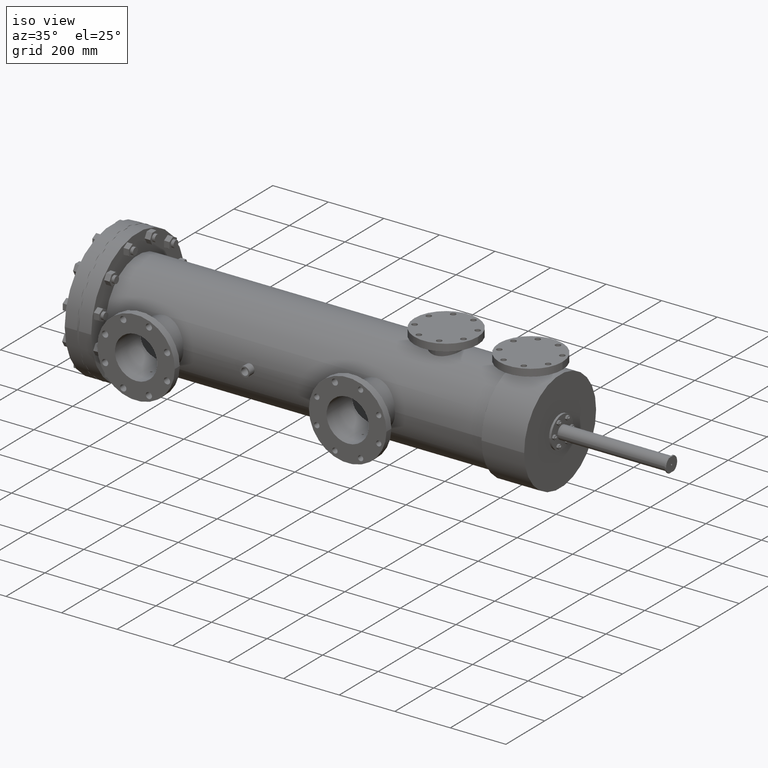
[diagram: clean part render]
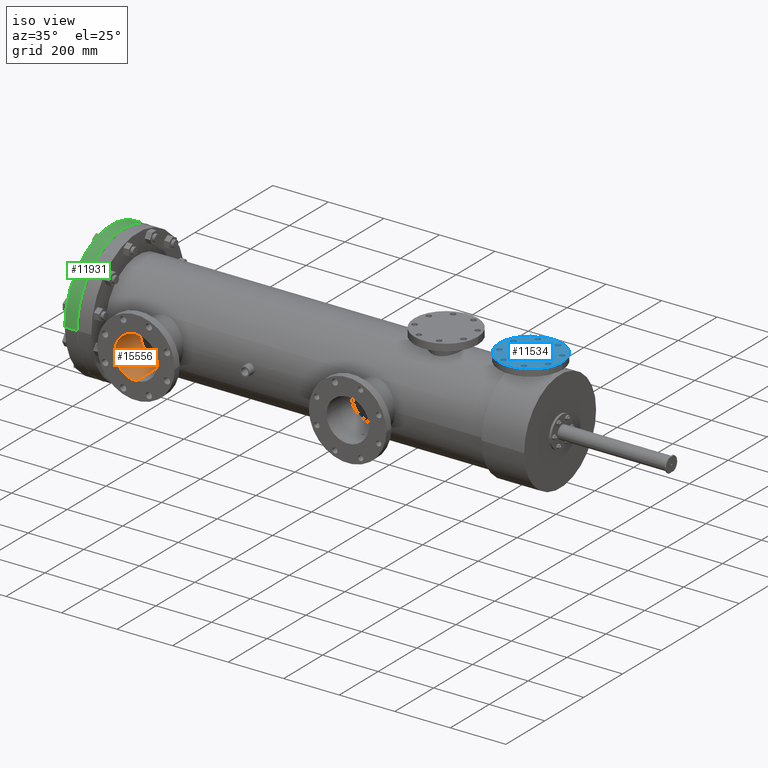
[diagram: same view with three faces highlighted in distinct colors, each labeled with its STEP entity id]
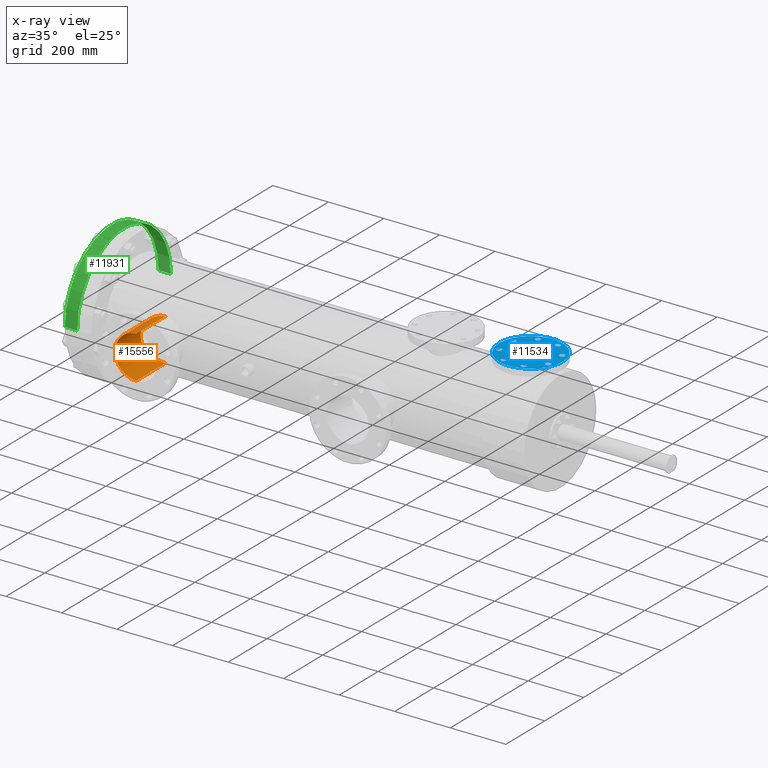
[diagram: x-ray of the same camera — body ghosted, the three highlighted faces saturated]
A machine part, iso view with three faces highlighted in distinct colors.
The next image is the same camera in x-ray (body ghosted, the three faces saturated) — at least one of them is partly hidden behind the body in this view.
Their STEP definitions:

[orange] entity #15556 — the highlighted cylindrical surface (edge-blend (fillet) strip) has radius 76.2 mm, axis along (-0, 1, -0).
#492 = VERTEX_POINT ( 'NONE', #22740 ) ;
#597 = CARTESIAN_POINT ( 'NONE',  ( 11.51730782642430562, -8.652575197445298016, 2.998526264328826851 ) ) ;
#623 = CARTESIAN_POINT ( 'NONE',  ( 9.558674139536940118, -6.039078318696860848, 2.189789538156999171 ) ) ;
#641 = CARTESIAN_POINT ( 'NONE',  ( 11.57859284369240882, -8.448309523612371308, 2.999857366286371452 ) ) ;
#702 = CARTESIAN_POINT ( 'NONE',  ( 10.92273503062959250, -5.721399554586327874, 2.920283405058814008 ) ) ;
#719 = CARTESIAN_POINT ( 'NONE',  ( 11.49911367317697675, -8.514700157483538590, 2.997895352627950150 ) ) ;
#781 = CARTESIAN_POINT ( 'NONE',  ( 11.49914880006620876, -8.625378343059585617, -2.997896691123318913 ) ) ;
#851 = CARTESIAN_POINT ( 'NONE',  ( 8.612778243953142621, -6.422659972131992134, -0.1006790159273870111 ) ) ;
#918 = CARTESIAN_POINT ( 'NONE',  ( 9.019205720796676928, -6.243195325996832246, -1.513113175104182195 ) ) ;
#983 = CARTESIAN_POINT ( 'NONE',  ( 9.459524635191909780, -6.073732202540636393, -2.090767382326028656 ) ) ;
#990 = CARTESIAN_POINT ( 'NONE',  ( 11.61151093272998125, 0.0000000000000000000, 3.000000000000001776 ) ) ;
#1151 = CARTESIAN_POINT ( 'NONE',  ( 8.773676827528797517, -6.349147511311646674, 0.9742431544829021073 ) ) ;
#1344 = VERTEX_POINT ( 'NONE', #19972 ) ;
#2038 = CARTESIAN_POINT ( 'NONE',  ( 11.48732609262924420, -8.586429699091944201, -2.997429012491930944 ) ) ;
#2109 = CARTESIAN_POINT ( 'NONE',  ( 11.48651093272998125, -8.578151181965772309, -2.997394702070452777 ) ) ;
#2341 = CARTESIAN_POINT ( 'NONE',  ( 11.48651093272997947, -8.570000000000000284, -2.997394702070451444 ) ) ;
#2361 = CARTESIAN_POINT ( 'NONE',  ( 11.61151093272998125, -11.62999999999999723, 2.999999999999998224 ) ) ;
#2413 = CARTESIAN_POINT ( 'NONE',  ( 11.55605729002469850, -8.457674129808653518, -2.999497000279083725 ) ) ;
#2488 = CARTESIAN_POINT ( 'NONE',  ( 11.48651093272998125, -8.561845306880254469, -2.997394702070451444 ) ) ;
#2492 = CARTESIAN_POINT ( 'NONE',  ( 11.06615705803287497, -5.705913649854822189, -2.950430928397056451 ) ) ;
#2544 = DIRECTION ( 'NONE',  ( -0.0000000000000000000, 1.000000000000000000, -0.0000000000000000000 ) ) ;
#2573 = CARTESIAN_POINT ( 'NONE',  ( 9.562609990157868722, -6.037737463396108950, -2.193494475645485497 ) ) ;
#2643 = CARTESIAN_POINT ( 'NONE',  ( 11.61151093272998125, -5.680010873165825203, 3.000000000000001776 ) ) ;
#2648 = CARTESIAN_POINT ( 'NONE',  ( 8.949445286971972280, -6.272575007800350377, -1.384122807339581485 ) ) ;
#2657 = CARTESIAN_POINT ( 'NONE',  ( 8.825288877813729727, -6.326252989736930843, 1.113271778841407045 ) ) ;
#2674 = CARTESIAN_POINT ( 'NONE',  ( 11.59520618766432953, -8.445000000000002061, 3.000000000000002220 ) ) ;
#2691 = VECTOR ( 'NONE', #3268, 39.37007874015748143 ) ;
#2720 = CARTESIAN_POINT ( 'NONE',  ( 9.069565676925883224, -6.222408617297126021, -1.596213750561851219 ) ) ;
#2731 = LINE ( 'NONE', #990, #16394 ) ;
#3106 = ORIENTED_EDGE ( 'NONE', *, *, #13679, .F. ) ;
#3268 = DIRECTION ( 'NONE',  ( -0.0000000000000000000, 1.000000000000000000, -0.0000000000000000000 ) ) ;
#3417 = CARTESIAN_POINT ( 'NONE',  ( 11.61151093272998125, 0.0000000000000000000, 3.000000000000001776 ) ) ;
#3897 = CARTESIAN_POINT ( 'NONE',  ( 11.49288622820519734, -8.610251574046037248, -2.997655416985298249 ) ) ;
#4108 = ORIENTED_EDGE ( 'NONE', *, *, #6341, .F. ) ;
#4115 = CARTESIAN_POINT ( 'NONE',  ( 11.60325293728961427, -8.445000000000000284, -3.000000000000002220 ) ) ;
#4124 = EDGE_CURVE ( 'NONE', #13887, #11366, #9494, .T. ) ;
#4135 = CARTESIAN_POINT ( 'NONE',  ( 10.10366163664201800, -5.876508609973899233, 2.593988243054515141 ) ) ;
#4201 = CARTESIAN_POINT ( 'NONE',  ( 11.49913300069727917, -8.514659997089875532, -2.997896082015063524 ) ) ;
#4229 = CARTESIAN_POINT ( 'NONE',  ( 11.49289277310040802, -8.529738992269631837, 2.997655654252064927 ) ) ;
#4269 = EDGE_CURVE ( 'NONE', #12900, #492, #8682, .T. ) ;
#4275 = CARTESIAN_POINT ( 'NONE',  ( 11.48651093272997947, -8.570000000000000284, -2.997394702070451444 ) ) ;
#4280 = CARTESIAN_POINT ( 'NONE',  ( 11.51242153053748041, -5.680010873165824314, -3.000000000000001332 ) ) ;
#4336 = CARTESIAN_POINT ( 'NONE',  ( 11.49288278390646667, -8.610245222267742804, 2.997655288889556235 ) ) ;
#4418 = CARTESIAN_POINT ( 'NONE',  ( 11.57125766154246982, -8.688623815805774697, 2.999739460536007929 ) ) ;
#4439 = CARTESIAN_POINT ( 'NONE',  ( 11.61151093272998125, -5.680010873165825203, -3.000000000000001776 ) ) ;
#4519 = CARTESIAN_POINT ( 'NONE',  ( 11.57126417256643691, -8.688627245798917542, -2.999739588468133267 ) ) ;
#4587 = CARTESIAN_POINT ( 'NONE',  ( 8.864251821746279347, -6.309197418604619578, -1.206233523104106364 ) ) ;
#4598 = CARTESIAN_POINT ( 'NONE',  ( 8.714118215928365885, -6.375943033931925186, 0.7842245057926716667 ) ) ;
#4713 = EDGE_CURVE ( 'NONE', #15642, #7315, #19085, .T. ) ;
#5114 = VERTEX_POINT ( 'NONE', #2361 ) ;
#5137 = CARTESIAN_POINT ( 'NONE',  ( 11.48651093272997947, -8.570000000000000284, 2.997394702070451888 ) ) ;
#5164 = CARTESIAN_POINT ( 'NONE',  ( 11.61151093272998125, 0.0000000000000000000, -3.000000000000001776 ) ) ;
#5438 = ORIENTED_EDGE ( 'NONE', *, *, #4124, .T. ) ;
#5569 = B_SPLINE_CURVE_WITH_KNOTS ( 'NONE', 3,
 ( #20277, #18426, #20135, #15005, #4418, #16828, #16587, #11280, #20444, #597, #18651, #7752, #5978, #4336, #16666, #11362, #9624, #22048 ),
 .UNSPECIFIED., .F., .F.,
 ( 4, 2, 2, 2, 2, 2, 2, 2, 4 ),
 ( 0.01026871614363562488, 0.01088905331869215870, 0.01150939049374869079, 0.01212972766880522461, 0.01275006484386175670, 0.01337040201891829053, 0.01399073919397482435, 0.01461107636903135817, 0.01523141354408789026 ),
 .UNSPECIFIED. ) ;
#5857 = CARTESIAN_POINT ( 'NONE',  ( 11.41101971926195979, -5.680010873165826091, 3.000000000000003109 ) ) ;
#5862 = CIRCLE ( 'NONE', #10094, 2.999999999999997335 ) ;
#5918 = CARTESIAN_POINT ( 'NONE',  ( 11.54887625798807349, -8.461516642900624774, -2.999353776064950239 ) ) ;
#5935 = CARTESIAN_POINT ( 'NONE',  ( 9.779210337748992288, -5.967676546009285765, 2.377394826914358550 ) ) ;
#5978 = CARTESIAN_POINT ( 'NONE',  ( 11.49916102432977816, -8.625405899425414802, 2.997897157472764640 ) ) ;
#6078 = CARTESIAN_POINT ( 'NONE',  ( 11.53527644826181842, -8.669396075706876204, -2.999038868677315506 ) ) ;
#6085 = CARTESIAN_POINT ( 'NONE',  ( 10.36274620202200758, -5.814922213508030069, 2.729499152386317906 ) ) ;
#6157 = CARTESIAN_POINT ( 'NONE',  ( 8.710923988507321525, -6.377351709289070136, -0.7910484460025092313 ) ) ;
#6161 = CARTESIAN_POINT ( 'NONE',  ( 11.51211861491758981, -8.646239738078200787, -2.998356496248436809 ) ) ;
#6165 = CARTESIAN_POINT ( 'NONE',  ( 9.175622817630864958, -6.180001919292234192, 1.751806825134517132 ) ) ;
#6182 = CARTESIAN_POINT ( 'NONE',  ( 11.51210720452737668, -8.493765299116203593, 2.998356186808221580 ) ) ;
#6232 = CARTESIAN_POINT ( 'NONE',  ( 8.617844152002581026, -6.420297347325010229, -0.2012292447834091724 ) ) ;
#6236 = CARTESIAN_POINT ( 'NONE',  ( 11.57905623031146369, -8.690989001637477784, -2.999835127671413026 ) ) ;
#6288 = B_SPLINE_CURVE_WITH_KNOTS ( 'NONE', 3,
 ( #18284, #5857, #20162, #20237, #702, #9336, #13172, #14807, #21844, #6085, #21923, #11154, #4135, #18600, #16616, #18458, #5935, #9491, #623, #7857, #13090, #20401, #9658, #6165, #15252, #16935, #13319, #2657, #15111, #1151, #22539, #4598, #6320, #13398, #8082, #15330 ),
 .UNSPECIFIED., .F., .F.,
 ( 4, 2, 2, 2, 2, 2, 2, 2, 2, 2, 2, 2, 2, 2, 2, 2, 2, 4 ),
 ( 0.3544623844793388656, 0.3695564702495036102, 0.3733299916920448380, 0.3771035131345861213, 0.3846505560196687989, 0.3921975989047514211, 0.3959711203472928709, 0.3997446417898342652, 0.4072916846749171094, 0.4148387275599999535, 0.4223857704450827422, 0.4261592918876241920, 0.4299328133301656418, 0.4450268991003314412, 0.4488004205428729465, 0.4525739419854144518, 0.4601209848704974070, 0.4752150706406633729 ),
 .UNSPECIFIED. ) ;
#6307 = CARTESIAN_POINT ( 'NONE',  ( 9.328365756885535376, -6.121427064491269832, -1.946689782794536638 ) ) ;
#6320 = CARTESIAN_POINT ( 'NONE',  ( 8.689858404075319953, -6.387028403257645870, 0.6882594674136749413 ) ) ;
#6341 = EDGE_CURVE ( 'NONE', #18507, #19734, #6288, .T. ) ;
#6385 = CARTESIAN_POINT ( 'NONE',  ( 9.425817164388897496, -6.085759376637758677, -2.055509284822179872 ) ) ;
#6730 = AXIS2_PLACEMENT_3D ( 'NONE', #10597, #14024, #23086 ) ;
#6825 = ORIENTED_EDGE ( 'NONE', *, *, #15768, .F. ) ;
#7001 = CARTESIAN_POINT ( 'NONE',  ( 11.61151093272998125, -8.445000000000000284, -3.000000000000001776 ) ) ;
#7273 = CARTESIAN_POINT ( 'NONE',  ( 11.61151093272998125, -8.695000000000000284, 3.000000000000001776 ) ) ;
#7315 = VERTEX_POINT ( 'NONE', #16777 ) ;
#7400 = LINE ( 'NONE', #3417, #2691 ) ;
#7500 = B_SPLINE_CURVE_WITH_KNOTS ( 'NONE', 3,
 ( #18449, #13233, #851, #6232, #11529, #18592, #18755, #6157, #18902, #4587, #7849, #7991, #2648, #918, #2720, #17084, #9718, #6307, #8154, #6385, #983, #2573, #20532, #13388, #7923, #18827, #13464, #22446, #11679, #20462, #11755, #9873, #15241, #13163, #15173, #2492, #15028, #8071, #22218, #14946, #13307, #11457, #4280, #4439 ),
 .UNSPECIFIED., .F., .F.,
 ( 4, 2, 2, 2, 2, 2, 2, 2, 2, 2, 2, 2, 2, 2, 2, 2, 2, 2, 2, 2, 2, 4 ),
 ( 0.4752150706406633729, 0.4789906789865779890, 0.4827662873324926052, 0.4903175040243217819, 0.5054199374079803020, 0.5091955457538948071, 0.5129711540998094232, 0.5205223707916386555, 0.5280735874834677768, 0.5318491958293823929, 0.5356248041752970090, 0.5431760208671262413, 0.5507272375589554736, 0.5582784542507848169, 0.5620540625966994330, 0.5658296709426140492, 0.5733808876344435035, 0.5809321043262728468, 0.5847077126721875739, 0.5865955168451449930, 0.5884833210181024121, 0.5960345377099320885 ),
 .UNSPECIFIED. ) ;
#7690 = CARTESIAN_POINT ( 'NONE',  ( 11.53528924306585779, -8.470591774624423920, -2.999039251243612370 ) ) ;
#7735 = ORIENTED_EDGE ( 'NONE', *, *, #14653, .F. ) ;
#7752 = CARTESIAN_POINT ( 'NONE',  ( 11.50306624932985144, -8.632697806341726121, 2.998042734768266993 ) ) ;
#7849 = CARTESIAN_POINT ( 'NONE',  ( 8.884556531577100458, -6.300380617423853913, -1.251459570571708646 ) ) ;
#7852 = CARTESIAN_POINT ( 'NONE',  ( 11.50306614039963549, -8.632698146055373556, -2.998042734593981518 ) ) ;
#7857 = CARTESIAN_POINT ( 'NONE',  ( 9.422152512063773244, -6.086816769151702111, 2.053296575452967065 ) ) ;
#7919 = CARTESIAN_POINT ( 'NONE',  ( 11.57120279243592087, -8.451393670364675259, -2.999738757791842403 ) ) ;
#7923 = CARTESIAN_POINT ( 'NONE',  ( 9.860564915369748107, -5.943134709823252315, -2.437938798087624370 ) ) ;
#7946 = CARTESIAN_POINT ( 'NONE',  ( 11.48651093272997770, -8.561842672739363280, 2.997394702070451444 ) ) ;
#7991 = CARTESIAN_POINT ( 'NONE',  ( 8.927157092783252423, -6.282068015163912555, -1.340401367018791978 ) ) ;
#8041 = CARTESIAN_POINT ( 'NONE',  ( 11.61151093272998125, 0.0000000000000000000, -3.000000000000001776 ) ) ;
#8071 = CARTESIAN_POINT ( 'NONE',  ( 11.18940637292363327, -5.695611970100188159, -2.970261599930613006 ) ) ;
#8082 = CARTESIAN_POINT ( 'NONE',  ( 8.611510932729977696, -6.423251896665703065, 0.2006998500313843803 ) ) ;
#8154 = CARTESIAN_POINT ( 'NONE',  ( 9.360196879233747325, -6.109622326236680223, -1.983421463402464946 ) ) ;
#8498 = EDGE_LOOP ( 'NONE', ( #22707, #5438, #3106, #6825, #15513, #13924, #4108, #8658, #16543, #14529, #7735 ) ) ;
#8658 = ORIENTED_EDGE ( 'NONE', *, *, #13739, .F. ) ;
#8682 = B_SPLINE_CURVE_WITH_KNOTS ( 'NONE', 3,
 ( #9674, #7946, #20631, #13186, #4229, #719, #16871, #6182, #9588, #13417, #16719, #11481, #20412, #641, #2674, #18702 ),
 .UNSPECIFIED., .F., .F.,
 ( 4, 2, 2, 2, 2, 2, 2, 4 ),
 ( 0.01523141354408789026, 0.01585146404183380639, 0.01647151453957972078, 0.01709156503732563517, 0.01771161553507154957, 0.01833166603281746743, 0.01895171653056338182, 0.02019181752605521060 ),
 .UNSPECIFIED. ) ;
#8978 = B_SPLINE_CURVE_WITH_KNOTS ( 'NONE', 3,
 ( #2341, #2109, #2038, #14503, #3897, #781, #7852, #6161, #20467, #11605, #6078, #11532, #13392, #4519, #6236, #9650, #20234, #15033 ),
 .UNSPECIFIED., .F., .F.,
 ( 4, 2, 2, 2, 2, 2, 2, 2, 4 ),
 ( 0.01028573131980138611, 0.01090606609851138206, 0.01152640087722137628, 0.01214673565593137050, 0.01276707043464136646, 0.01338740521335136241, 0.01400773999206135663, 0.01462807477077135085, 0.01524840954948134680 ),
 .UNSPECIFIED. ) ;
#9284 = B_SPLINE_CURVE_WITH_KNOTS ( 'NONE', 3,
 ( #12992, #4115, #18670, #18514, #7919, #2413, #5918, #7690, #9638, #9479, #11448, #14865, #4201, #16683, #20297, #9559, #2488, #4275 ),
 .UNSPECIFIED., .F., .F.,
 ( 4, 2, 2, 2, 2, 2, 2, 2, 4 ),
 ( 0.005320915396783404590, 0.005941517387160651954, 0.006562119377537900186, 0.007182721367915147551, 0.007803323358292394915, 0.008423925348669644014, 0.009044527339046891379, 0.009665129329424138743, 0.01028573131980138611 ),
 .UNSPECIFIED. ) ;
#9336 = CARTESIAN_POINT ( 'NONE',  ( 10.82643289495596584, -5.733783700219906798, 2.895879811694713091 ) ) ;
#9479 = CARTESIAN_POINT ( 'NONE',  ( 11.51732355690012888, -8.487415025697931270, -2.998526640205414928 ) ) ;
#9491 = CARTESIAN_POINT ( 'NONE',  ( 9.630059790156490607, -6.015123296796152097, 2.254591537951178726 ) ) ;
#9494 = LINE ( 'NONE', #5164, #13138 ) ;
#9559 = CARTESIAN_POINT ( 'NONE',  ( 11.48730119510276992, -8.553730636367118834, -2.997427983259710160 ) ) ;
#9588 = CARTESIAN_POINT ( 'NONE',  ( 11.51727864227447284, -8.487467789414520070, 2.998525200788498601 ) ) ;
#9624 = CARTESIAN_POINT ( 'NONE',  ( 11.48651093272997947, -8.578161098760944014, 2.997394702070451444 ) ) ;
#9638 = CARTESIAN_POINT ( 'NONE',  ( 11.52885523190130890, -8.475874685303534051, -2.998866670745434782 ) ) ;
#9650 = CARTESIAN_POINT ( 'NONE',  ( 11.59506830864616944, -8.694182471949734037, -2.999965623308653129 ) ) ;
#9658 = CARTESIAN_POINT ( 'NONE',  ( 9.233846376980441306, -6.157296054838731436, 1.830051726646363619 ) ) ;
#9674 = CARTESIAN_POINT ( 'NONE',  ( 11.48651093272997947, -8.570000000000000284, 2.997394702070451888 ) ) ;
#9718 = CARTESIAN_POINT ( 'NONE',  ( 9.235751127090447099, -6.156354011731264286, -1.834441976073722724 ) ) ;
#9873 = CARTESIAN_POINT ( 'NONE',  ( 10.54638919407062758, -5.778290073957357720, -2.806251295899748310 ) ) ;
#10063 = CARTESIAN_POINT ( 'NONE',  ( 11.61151093272998125, -8.695000000000000284, -3.000000000000001776 ) ) ;
#10094 = AXIS2_PLACEMENT_3D ( 'NONE', #12103, #21169, #14041 ) ;
#10597 = CARTESIAN_POINT ( 'NONE',  ( 11.61151093272998125, 0.0000000000000000000, 0.0000000000000000000 ) ) ;
#11154 = CARTESIAN_POINT ( 'NONE',  ( 10.14601930652042405, -5.865779349882723537, 2.618149986574314525 ) ) ;
#11280 = CARTESIAN_POINT ( 'NONE',  ( 11.53526934740529164, -8.669391036665738071, 2.999038697203233461 ) ) ;
#11362 = CARTESIAN_POINT ( 'NONE',  ( 11.48732912438919662, -8.586446061318168788, 2.997429136841784914 ) ) ;
#11366 = VERTEX_POINT ( 'NONE', #10063 ) ;
#11448 = CARTESIAN_POINT ( 'NONE',  ( 11.51215050342235280, -8.493710708331594361, -2.998357614777013680 ) ) ;
#11457 = CARTESIAN_POINT ( 'NONE',  ( 11.41317505001402743, -5.682604224598185816, -2.995103152180383699 ) ) ;
#11481 = CARTESIAN_POINT ( 'NONE',  ( 11.54878420086817314, -8.461569269629857004, 2.999351857317165582 ) ) ;
#11529 = CARTESIAN_POINT ( 'NONE',  ( 8.621639991304363093, -6.418527932620312626, -0.2514067542115475118 ) ) ;
#11532 = CARTESIAN_POINT ( 'NONE',  ( 11.54881275281322850, -8.678444523712267156, -2.999352391883049584 ) ) ;
#11605 = CARTESIAN_POINT ( 'NONE',  ( 11.52894635096973452, -8.664213034861242946, -2.998869306431141357 ) ) ;
#11679 = CARTESIAN_POINT ( 'NONE',  ( 10.27821300707076269, -5.834161859295483588, -2.687882626902641015 ) ) ;
#11755 = CARTESIAN_POINT ( 'NONE',  ( 10.41124395531814528, -5.805211563032085742, -2.749862150437836661 ) ) ;
#11840 = VERTEX_POINT ( 'NONE', #7273 ) ;
#11912 = DIRECTION ( 'NONE',  ( -0.0000000000000000000, 1.000000000000000000, -0.0000000000000000000 ) ) ;
#12103 = CARTESIAN_POINT ( 'NONE',  ( 11.61151093272998125, -11.62999999999999723, 0.0000000000000000000 ) ) ;
#12198 = EDGE_CURVE ( 'NONE', #5114, #13887, #5862, .T. ) ;
#12432 = CARTESIAN_POINT ( 'NONE',  ( 8.611510932729979473, -6.423251896665703065, -6.998672579388744820E-20 ) ) ;
#12598 = VECTOR ( 'NONE', #2544, 39.37007874015748143 ) ;
#12900 = VERTEX_POINT ( 'NONE', #5137 ) ;
#12992 = CARTESIAN_POINT ( 'NONE',  ( 11.61151093272998125, -8.445000000000000284, -3.000000000000001776 ) ) ;
#13090 = CARTESIAN_POINT ( 'NONE',  ( 9.357016356190994699, -6.110601573633839934, 1.981606306100660797 ) ) ;
#13138 = VECTOR ( 'NONE', #15891, 39.37007874015748143 ) ;
#13163 = CARTESIAN_POINT ( 'NONE',  ( 10.82523220960057309, -5.733402304297694485, -2.896780335266876616 ) ) ;
#13172 = CARTESIAN_POINT ( 'NONE',  ( 10.77833753393881722, -5.740569978625821967, 2.882410500712538681 ) ) ;
#13186 = CARTESIAN_POINT ( 'NONE',  ( 11.49049090753924496, -8.537651674163274862, 2.997558456540483363 ) ) ;
#13233 = CARTESIAN_POINT ( 'NONE',  ( 8.611510932729977696, -6.423251896665703065, -0.05020271120361990275 ) ) ;
#13307 = CARTESIAN_POINT ( 'NONE',  ( 11.28891655777259118, -5.689105500878236299, -2.982709610430876346 ) ) ;
#13319 = CARTESIAN_POINT ( 'NONE',  ( 8.920028094555382481, -6.284776330722483983, 1.339566503640008177 ) ) ;
#13388 = CARTESIAN_POINT ( 'NONE',  ( 9.783195349847273903, -5.966455593986117023, -2.380450646376616852 ) ) ;
#13392 = CARTESIAN_POINT ( 'NONE',  ( 11.55611349722152603, -8.682353679461714435, -2.999498045417884562 ) ) ;
#13398 = CARTESIAN_POINT ( 'NONE',  ( 8.631445376788510870, -6.413876714871289408, 0.3977783968570633988 ) ) ;
#13417 = CARTESIAN_POINT ( 'NONE',  ( 11.52878090838295400, -8.475941329904376431, 2.998864593041794979 ) ) ;
#13464 = CARTESIAN_POINT ( 'NONE',  ( 10.10458529644597014, -5.875811113533663921, -2.595924034930420010 ) ) ;
#13679 = EDGE_CURVE ( 'NONE', #1344, #11366, #8978, .T. ) ;
#13739 = EDGE_CURVE ( 'NONE', #492, #18507, #2731, .T. ) ;
#13887 = VERTEX_POINT ( 'NONE', #17853 ) ;
#13924 = ORIENTED_EDGE ( 'NONE', *, *, #14468, .F. ) ;
#14024 = DIRECTION ( 'NONE',  ( -0.0000000000000000000, 1.000000000000000000, -0.0000000000000000000 ) ) ;
#14041 = DIRECTION ( 'NONE',  ( 1.000000000000000000, 0.0000000000000000000, 0.0000000000000000000 ) ) ;
#14468 = EDGE_CURVE ( 'NONE', #19734, #7315, #7500, .T. ) ;
#14503 = CARTESIAN_POINT ( 'NONE',  ( 11.49052306973512572, -8.602461462244262336, -2.997559756943491749 ) ) ;
#14529 = ORIENTED_EDGE ( 'NONE', *, *, #16010, .F. ) ;
#14653 = EDGE_CURVE ( 'NONE', #5114, #11840, #7400, .T. ) ;
#14807 = CARTESIAN_POINT ( 'NONE',  ( 10.63586089883994568, -5.762388650433971193, 2.838658105453145009 ) ) ;
#14865 = CARTESIAN_POINT ( 'NONE',  ( 11.50301684167048677, -8.507377455013084955, -2.998041012596170951 ) ) ;
#14946 = CARTESIAN_POINT ( 'NONE',  ( 11.26405482229124111, -5.690568634913056201, -2.979916532099756044 ) ) ;
#15005 = CARTESIAN_POINT ( 'NONE',  ( 11.57904739029862995, -8.690987583633308589, 2.999835069188787173 ) ) ;
#15028 = CARTESIAN_POINT ( 'NONE',  ( 11.11516999261544569, -5.701431217863623502, -2.959079349543181081 ) ) ;
#15033 = CARTESIAN_POINT ( 'NONE',  ( 11.61151093272998125, -8.695000000000000284, -3.000000000000001776 ) ) ;
#15111 = CARTESIAN_POINT ( 'NONE',  ( 8.807376407016706210, -6.334163719036722817, 1.067371394783747096 ) ) ;
#15173 = CARTESIAN_POINT ( 'NONE',  ( 10.92049926636936874, -5.721053435336241222, -2.921012996292519759 ) ) ;
#15241 = CARTESIAN_POINT ( 'NONE',  ( 10.63817701161250184, -5.762020379119558555, -2.839399869556410660 ) ) ;
#15252 = CARTESIAN_POINT ( 'NONE',  ( 9.147542417761219014, -6.191126921136294925, 1.712080063662836382 ) ) ;
#15330 = CARTESIAN_POINT ( 'NONE',  ( 8.611510932729979473, -6.423251896665703065, -6.998672579388744820E-20 ) ) ;
#15513 = ORIENTED_EDGE ( 'NONE', *, *, #4713, .T. ) ;
#15556 = ADVANCED_FACE ( 'NONE', ( #19158 ), #18870, .F. ) ;
#15642 = VERTEX_POINT ( 'NONE', #7001 ) ;
#15768 = EDGE_CURVE ( 'NONE', #15642, #1344, #9284, .T. ) ;
#15891 = DIRECTION ( 'NONE',  ( -0.0000000000000000000, 1.000000000000000000, -0.0000000000000000000 ) ) ;
#16010 = EDGE_CURVE ( 'NONE', #11840, #12900, #5569, .T. ) ;
#16394 = VECTOR ( 'NONE', #11912, 39.37007874015748143 ) ;
#16543 = ORIENTED_EDGE ( 'NONE', *, *, #4269, .F. ) ;
#16587 = CARTESIAN_POINT ( 'NONE',  ( 11.54881365245598168, -8.678445417370008741, 2.999352419723552821 ) ) ;
#16616 = CARTESIAN_POINT ( 'NONE',  ( 9.978676085843428467, -5.909806356370165048, 2.517188788119302245 ) ) ;
#16666 = CARTESIAN_POINT ( 'NONE',  ( 11.49052139627943703, -8.602451910963008430, 2.997559688143066836 ) ) ;
#16683 = CARTESIAN_POINT ( 'NONE',  ( 11.49290282696308374, -8.529708154963728362, -2.997656056891051524 ) ) ;
#16719 = CARTESIAN_POINT ( 'NONE',  ( 11.53519272310234456, -8.470665227347630832, 2.999036801668366614 ) ) ;
#16777 = CARTESIAN_POINT ( 'NONE',  ( 11.61151093272998125, -5.680010873165825203, -3.000000000000001776 ) ) ;
#16828 = CARTESIAN_POINT ( 'NONE',  ( 11.55613914044512391, -8.682365030755930135, 2.999498478338891605 ) ) ;
#16871 = CARTESIAN_POINT ( 'NONE',  ( 11.50296411588539947, -8.507466654076983659, 2.998039111270002000 ) ) ;
#16935 = CARTESIAN_POINT ( 'NONE',  ( 9.012215853476188698, -6.245455227098503315, 1.510433343564886455 ) ) ;
#17084 = CARTESIAN_POINT ( 'NONE',  ( 9.177838314267452446, -6.178988619428539941, -1.756878370045410032 ) ) ;
#17853 = CARTESIAN_POINT ( 'NONE',  ( 11.61151093272998125, -11.62999999999999723, -2.999999999999998224 ) ) ;
#18284 = CARTESIAN_POINT ( 'NONE',  ( 11.61151093272998125, -5.680010873165825203, 3.000000000000001776 ) ) ;
#18426 = CARTESIAN_POINT ( 'NONE',  ( 11.60336181424116297, -8.695000000000000284, 3.000000000000001332 ) ) ;
#18449 = CARTESIAN_POINT ( 'NONE',  ( 8.611510932729979473, -6.423251896665703065, -6.998672579388744820E-20 ) ) ;
#18458 = CARTESIAN_POINT ( 'NONE',  ( 9.856974222204799574, -5.944183359853131066, 2.435396694664268669 ) ) ;
#18507 = VERTEX_POINT ( 'NONE', #2643 ) ;
#18514 = CARTESIAN_POINT ( 'NONE',  ( 11.57914025546314640, -8.448989635591001246, -2.999835993468037199 ) ) ;
#18592 = CARTESIAN_POINT ( 'NONE',  ( 8.636815301938293388, -6.411471585046603749, -0.4016470016404701249 ) ) ;
#18600 = CARTESIAN_POINT ( 'NONE',  ( 10.02003741597387432, -5.898508530442269304, 2.543540160933567051 ) ) ;
#18651 = CARTESIAN_POINT ( 'NONE',  ( 11.51211373934678583, -8.646232947111878175, 2.998356330858973351 ) ) ;
#18670 = CARTESIAN_POINT ( 'NONE',  ( 11.59512077312629152, -8.445811708646598248, -2.999965868326045282 ) ) ;
#18702 = CARTESIAN_POINT ( 'NONE',  ( 11.61151093272998125, -8.445000000000000284, 3.000000000000001776 ) ) ;
#18755 = CARTESIAN_POINT ( 'NONE',  ( 8.651841237927856199, -6.404499482846487624, -0.5001458426292982873 ) ) ;
#18827 = CARTESIAN_POINT ( 'NONE',  ( 10.02126050014199699, -5.897813191421158230, -2.545674979368798496 ) ) ;
#18870 = CYLINDRICAL_SURFACE ( 'NONE', #6730, 3.000000000000001776 ) ;
#18902 = CARTESIAN_POINT ( 'NONE',  ( 8.768847705738687992, -6.350953769528980608, -0.9788650265489603486 ) ) ;
#19085 = LINE ( 'NONE', #8041, #12598 ) ;
#19158 = FACE_OUTER_BOUND ( 'NONE', #8498, .T. ) ;
#19734 = VERTEX_POINT ( 'NONE', #12432 ) ;
#19972 = CARTESIAN_POINT ( 'NONE',  ( 11.48651093272997947, -8.570000000000000284, -2.997394702070451444 ) ) ;
#20135 = CARTESIAN_POINT ( 'NONE',  ( 11.59508729700161922, -8.694185913734536086, 2.999965764489912701 ) ) ;
#20162 = CARTESIAN_POINT ( 'NONE',  ( 11.21377826404545353, -5.690637889958023443, 2.980106205035196076 ) ) ;
#20234 = CARTESIAN_POINT ( 'NONE',  ( 11.60335284526550481, -8.695000000000003837, -3.000000000000001776 ) ) ;
#20237 = CARTESIAN_POINT ( 'NONE',  ( 10.97108046634156686, -5.715779399087392854, 2.931262583689115520 ) ) ;
#20277 = CARTESIAN_POINT ( 'NONE',  ( 11.61151093272998125, -8.695000000000000284, 3.000000000000001776 ) ) ;
#20297 = CARTESIAN_POINT ( 'NONE',  ( 11.49050709648823521, -8.537583604006313109, -2.997559114573817407 ) ) ;
#20401 = CARTESIAN_POINT ( 'NONE',  ( 9.264068645811102343, -6.145685868791482598, 1.868660495272076005 ) ) ;
#20412 = CARTESIAN_POINT ( 'NONE',  ( 11.55595524925675477, -8.457726409199864293, 2.999495044285946044 ) ) ;
#20444 = CARTESIAN_POINT ( 'NONE',  ( 11.52896177276748801, -8.664225923504391247, 2.998869723628706296 ) ) ;
#20462 = CARTESIAN_POINT ( 'NONE',  ( 10.36661903527878081, -5.814605039498900396, -2.729952479116175557 ) ) ;
#20467 = CARTESIAN_POINT ( 'NONE',  ( 11.51728484611950520, -8.652549686256739037, -2.998525549635705723 ) ) ;
#20532 = CARTESIAN_POINT ( 'NONE',  ( 9.634217824493129356, -6.013756324828537281, -2.258228313206092519 ) ) ;
#20631 = CARTESIAN_POINT ( 'NONE',  ( 11.48730178853108619, -8.553741181501020918, 2.997428003367538452 ) ) ;
#21169 = DIRECTION ( 'NONE',  ( 2.044436861273687145E-16, -1.000000000000000000, 0.0000000000000000000 ) ) ;
#21844 = CARTESIAN_POINT ( 'NONE',  ( 10.54330702172508794, -5.778856123359509489, 2.805088123402120104 ) ) ;
#21923 = CARTESIAN_POINT ( 'NONE',  ( 10.27473997116805293, -5.834521767746016607, 2.687479047561570411 ) ) ;
#22048 = CARTESIAN_POINT ( 'NONE',  ( 11.48651093272997947, -8.570000000000000284, 2.997394702070451888 ) ) ;
#22218 = CARTESIAN_POINT ( 'NONE',  ( 11.21431110387049301, -5.693820709582164241, -2.973694769628625778 ) ) ;
#22446 = CARTESIAN_POINT ( 'NONE',  ( 10.23435016655232488, -5.844345182243558590, -2.665678120329955547 ) ) ;
#22539 = CARTESIAN_POINT ( 'NONE',  ( 8.757847442438906782, -6.356239760041051845, 0.9268645218665824137 ) ) ;
#22707 = ORIENTED_EDGE ( 'NONE', *, *, #12198, .T. ) ;
#22740 = CARTESIAN_POINT ( 'NONE',  ( 11.61151093272998125, -8.445000000000000284, 3.000000000000001776 ) ) ;
#23086 = DIRECTION ( 'NONE',  ( 0.0000000000000000000, 0.0000000000000000000, 1.000000000000000000 ) ) ;

[blue] entity #11534 — the highlighted planar face has unit normal (0, 0, -1).
#21 = CIRCLE ( 'NONE', #21066, 0.3750000000000002220 ) ;
#87 = DIRECTION ( 'NONE',  ( 0.0000000000000000000, 0.0000000000000000000, -1.000000000000000000 ) ) ;
#361 = DIRECTION ( 'NONE',  ( 0.0000000000000000000, 0.0000000000000000000, -1.000000000000000000 ) ) ;
#671 = DIRECTION ( 'NONE',  ( -1.000000000000000000, 0.0000000000000000000, 0.0000000000000000000 ) ) ;
#796 = CARTESIAN_POINT ( 'NONE',  ( 59.43100000000001160, -1.109245979116856572E-15, 8.999999999999998224 ) ) ;
#917 = DIRECTION ( 'NONE',  ( 0.0000000000000000000, 0.0000000000000000000, -1.000000000000000000 ) ) ;
#1045 = CARTESIAN_POINT ( 'NONE',  ( 61.24106287136908833, 3.464548246917333429, 8.999999999999998224 ) ) ;
#1128 = FACE_BOUND ( 'NONE', #12032, .T. ) ;
#1431 = AXIS2_PLACEMENT_3D ( 'NONE', #14120, #4933, #8582 ) ;
#1747 = EDGE_CURVE ( 'NONE', #8914, #5489, #13249, .T. ) ;
#1751 = CARTESIAN_POINT ( 'NONE',  ( 60.49106287136907412, 3.464548246917333429, 8.999999999999998224 ) ) ;
#1806 = VERTEX_POINT ( 'NONE', #1751 ) ;
#1984 = DIRECTION ( 'NONE',  ( 0.0000000000000000000, 0.0000000000000000000, -1.000000000000000000 ) ) ;
#2059 = CIRCLE ( 'NONE', #4709, 0.3750000000000002220 ) ;
#2121 = CARTESIAN_POINT ( 'NONE',  ( 55.96645175308255915, -1.435062871368964377, 8.999999999999998224 ) ) ;
#2964 = EDGE_LOOP ( 'NONE', ( #11973, #4988 ) ) ;
#3123 = AXIS2_PLACEMENT_3D ( 'NONE', #3754, #10928, #3830 ) ;
#3131 = ORIENTED_EDGE ( 'NONE', *, *, #20212, .T. ) ;
#3384 = FACE_BOUND ( 'NONE', #15154, .T. ) ;
#3605 = VERTEX_POINT ( 'NONE', #16915 ) ;
#3699 = DIRECTION ( 'NONE',  ( -1.000000000000000000, 0.0000000000000000000, 0.0000000000000000000 ) ) ;
#3754 = CARTESIAN_POINT ( 'NONE',  ( 62.89554824691726509, 1.435062871369052750, 8.999999999999998224 ) ) ;
#3830 = DIRECTION ( 'NONE',  ( -1.000000000000000000, 0.0000000000000000000, 0.0000000000000000000 ) ) ;
#3919 = VERTEX_POINT ( 'NONE', #19170 ) ;
#4312 = CARTESIAN_POINT ( 'NONE',  ( 62.89554824691720825, -1.435062871369117365, 8.999999999999998224 ) ) ;
#4366 = VERTEX_POINT ( 'NONE', #6713 ) ;
#4596 = VERTEX_POINT ( 'NONE', #20203 ) ;
#4709 = AXIS2_PLACEMENT_3D ( 'NONE', #4312, #22024, #18552 ) ;
#4780 = ORIENTED_EDGE ( 'NONE', *, *, #20711, .T. ) ;
#4905 = EDGE_CURVE ( 'NONE', #11384, #10225, #21, .T. ) ;
#4933 = DIRECTION ( 'NONE',  ( 0.0000000000000000000, 0.0000000000000000000, -1.000000000000000000 ) ) ;
#4988 = ORIENTED_EDGE ( 'NONE', *, *, #11044, .F. ) ;
#4990 = AXIS2_PLACEMENT_3D ( 'NONE', #21609, #7543, #9174 ) ;
#5212 = EDGE_CURVE ( 'NONE', #14728, #11692, #19040, .T. ) ;
#5299 = AXIS2_PLACEMENT_3D ( 'NONE', #23037, #10389, #22805 ) ;
#5334 = ORIENTED_EDGE ( 'NONE', *, *, #8441, .T. ) ;
#5449 = CARTESIAN_POINT ( 'NONE',  ( 62.52054824691720825, -1.435062871369117365, 8.999999999999998224 ) ) ;
#5489 = VERTEX_POINT ( 'NONE', #15301 ) ;
#5549 = ORIENTED_EDGE ( 'NONE', *, *, #7688, .T. ) ;
#5818 = CIRCLE ( 'NONE', #19927, 0.3750000000000002220 ) ;
#5959 = EDGE_LOOP ( 'NONE', ( #7503, #12935 ) ) ;
#6343 = CIRCLE ( 'NONE', #19625, 0.3750000000000002220 ) ;
#6415 = EDGE_LOOP ( 'NONE', ( #9060, #11130 ) ) ;
#6442 = CARTESIAN_POINT ( 'NONE',  ( 60.86606287136892490, -3.464548246917303231, 8.999999999999998224 ) ) ;
#6448 = FACE_BOUND ( 'NONE', #7114, .T. ) ;
#6584 = CARTESIAN_POINT ( 'NONE',  ( 63.27054824691726509, 1.435062871369052750, 8.999999999999998224 ) ) ;
#6713 = CARTESIAN_POINT ( 'NONE',  ( 62.52054824691726509, 1.435062871369052750, 8.999999999999998224 ) ) ;
#7000 = CARTESIAN_POINT ( 'NONE',  ( 58.37093712863090644, 3.464548246917394714, 8.999999999999998224 ) ) ;
#7114 = EDGE_LOOP ( 'NONE', ( #21637, #9709 ) ) ;
#7414 = CIRCLE ( 'NONE', #22457, 0.3750000000000002220 ) ;
#7416 = EDGE_CURVE ( 'NONE', #16140, #21205, #6343, .T. ) ;
#7503 = ORIENTED_EDGE ( 'NONE', *, *, #9602, .T. ) ;
#7543 = DIRECTION ( 'NONE',  ( 0.0000000000000000000, 0.0000000000000000000, -1.000000000000000000 ) ) ;
#7603 = DIRECTION ( 'NONE',  ( -1.000000000000000000, 0.0000000000000000000, 0.0000000000000000000 ) ) ;
#7688 = EDGE_CURVE ( 'NONE', #4596, #8894, #5818, .T. ) ;
#7834 = AXIS2_PLACEMENT_3D ( 'NONE', #9054, #10788, #3699 ) ;
#8156 = ORIENTED_EDGE ( 'NONE', *, *, #19748, .T. ) ;
#8441 = EDGE_CURVE ( 'NONE', #20976, #23019, #7414, .T. ) ;
#8582 = DIRECTION ( 'NONE',  ( -1.000000000000000000, 0.0000000000000000000, 0.0000000000000000000 ) ) ;
#8626 = CARTESIAN_POINT ( 'NONE',  ( 62.89554824691720825, -1.435062871369117365, 8.999999999999998224 ) ) ;
#8821 = CIRCLE ( 'NONE', #10824, 0.3750000000000002220 ) ;
#8894 = VERTEX_POINT ( 'NONE', #7000 ) ;
#8903 = CARTESIAN_POINT ( 'NONE',  ( 59.43100000000001160, -1.109245979116856572E-15, 8.999999999999998224 ) ) ;
#8914 = VERTEX_POINT ( 'NONE', #19448 ) ;
#8921 = CARTESIAN_POINT ( 'NONE',  ( 54.93100000000000449, -1.109245979116856572E-15, 8.999999999999998224 ) ) ;
#9054 = CARTESIAN_POINT ( 'NONE',  ( 59.43100000000001160, -1.109245979116856572E-15, 8.999999999999998224 ) ) ;
#9060 = ORIENTED_EDGE ( 'NONE', *, *, #11245, .T. ) ;
#9174 = DIRECTION ( 'NONE',  ( -1.000000000000000000, 0.0000000000000000000, 0.0000000000000000000 ) ) ;
#9190 = DIRECTION ( 'NONE',  ( -1.000000000000000000, 0.0000000000000000000, 0.0000000000000000000 ) ) ;
#9246 = CIRCLE ( 'NONE', #7834, 4.500000000000002665 ) ;
#9317 = DIRECTION ( 'NONE',  ( 0.0000000000000000000, 0.0000000000000000000, -1.000000000000000000 ) ) ;
#9469 = AXIS2_PLACEMENT_3D ( 'NONE', #19507, #23144, #14322 ) ;
#9556 = EDGE_CURVE ( 'NONE', #3605, #3919, #18033, .T. ) ;
#9602 = EDGE_CURVE ( 'NONE', #3919, #3605, #22750, .T. ) ;
#9709 = ORIENTED_EDGE ( 'NONE', *, *, #4905, .T. ) ;
#10225 = VERTEX_POINT ( 'NONE', #12623 ) ;
#10237 = DIRECTION ( 'NONE',  ( 0.0000000000000000000, 0.0000000000000000000, -1.000000000000000000 ) ) ;
#10389 = DIRECTION ( 'NONE',  ( 0.0000000000000000000, 0.0000000000000000000, -1.000000000000000000 ) ) ;
#10788 = DIRECTION ( 'NONE',  ( 0.0000000000000000000, 0.0000000000000000000, -1.000000000000000000 ) ) ;
#10824 = AXIS2_PLACEMENT_3D ( 'NONE', #11275, #12894, #671 ) ;
#10928 = DIRECTION ( 'NONE',  ( 0.0000000000000000000, 0.0000000000000000000, -1.000000000000000000 ) ) ;
#11044 = EDGE_CURVE ( 'NONE', #11692, #14728, #9246, .T. ) ;
#11080 = CARTESIAN_POINT ( 'NONE',  ( 55.59145175308255915, -1.435062871368964377, 8.999999999999998224 ) ) ;
#11130 = ORIENTED_EDGE ( 'NONE', *, *, #7416, .T. ) ;
#11207 = AXIS2_PLACEMENT_3D ( 'NONE', #6442, #10237, #11810 ) ;
#11245 = EDGE_CURVE ( 'NONE', #21205, #16140, #2059, .T. ) ;
#11275 = CARTESIAN_POINT ( 'NONE',  ( 57.99593712863090644, 3.464548246917394714, 8.999999999999998224 ) ) ;
#11324 = AXIS2_PLACEMENT_3D ( 'NONE', #18120, #12847, #16285 ) ;
#11384 = VERTEX_POINT ( 'NONE', #15277 ) ;
#11450 = FACE_BOUND ( 'NONE', #18574, .T. ) ;
#11534 = ADVANCED_FACE ( 'NONE', ( #16769, #15890, #6448, #11450, #13680, #13122, #1128, #3384, #20149 ), #11891, .F. ) ;
#11636 = EDGE_CURVE ( 'NONE', #14188, #4366, #14538, .T. ) ;
#11639 = CIRCLE ( 'NONE', #16382, 0.3750000000000089928 ) ;
#11692 = VERTEX_POINT ( 'NONE', #16686 ) ;
#11810 = DIRECTION ( 'NONE',  ( -1.000000000000000000, 0.0000000000000000000, 0.0000000000000000000 ) ) ;
#11891 = PLANE ( 'NONE',  #19852 ) ;
#11973 = ORIENTED_EDGE ( 'NONE', *, *, #5212, .F. ) ;
#11984 = CIRCLE ( 'NONE', #3123, 0.3750000000000002220 ) ;
#12032 = EDGE_LOOP ( 'NONE', ( #5549, #16736 ) ) ;
#12129 = EDGE_LOOP ( 'NONE', ( #18891, #20521 ) ) ;
#12402 = EDGE_CURVE ( 'NONE', #4366, #14188, #11984, .T. ) ;
#12623 = CARTESIAN_POINT ( 'NONE',  ( 60.49106287136892490, -3.464548246917303231, 8.999999999999998224 ) ) ;
#12721 = DIRECTION ( 'NONE',  ( 0.0000000000000000000, 0.0000000000000000000, -1.000000000000000000 ) ) ;
#12847 = DIRECTION ( 'NONE',  ( 0.0000000000000000000, 0.0000000000000000000, -1.000000000000000000 ) ) ;
#12894 = DIRECTION ( 'NONE',  ( 0.0000000000000000000, 0.0000000000000000000, -1.000000000000000000 ) ) ;
#12935 = ORIENTED_EDGE ( 'NONE', *, *, #9556, .T. ) ;
#13122 = FACE_BOUND ( 'NONE', #5959, .T. ) ;
#13249 = CIRCLE ( 'NONE', #5299, 0.3750000000000002220 ) ;
#13514 = AXIS2_PLACEMENT_3D ( 'NONE', #2121, #16626, #9190 ) ;
#13680 = FACE_BOUND ( 'NONE', #17696, .T. ) ;
#14007 = DIRECTION ( 'NONE',  ( -1.000000000000000000, 0.0000000000000000000, 0.0000000000000000000 ) ) ;
#14120 = CARTESIAN_POINT ( 'NONE',  ( 57.99593712863075723, -3.464548246917241947, 8.999999999999998224 ) ) ;
#14121 = EDGE_CURVE ( 'NONE', #10225, #11384, #18087, .T. ) ;
#14188 = VERTEX_POINT ( 'NONE', #6584 ) ;
#14294 = CARTESIAN_POINT ( 'NONE',  ( 55.96645175308255915, -1.435062871368964377, 8.999999999999998224 ) ) ;
#14322 = DIRECTION ( 'NONE',  ( -1.000000000000000000, 0.0000000000000000000, 0.0000000000000000000 ) ) ;
#14538 = CIRCLE ( 'NONE', #21026, 0.3750000000000002220 ) ;
#14561 = CARTESIAN_POINT ( 'NONE',  ( 57.99593712863090644, 3.464548246917394714, 8.999999999999998224 ) ) ;
#14728 = VERTEX_POINT ( 'NONE', #8921 ) ;
#14783 = CARTESIAN_POINT ( 'NONE',  ( 56.34145175308255915, -1.435062871368964377, 8.999999999999998224 ) ) ;
#14837 = CIRCLE ( 'NONE', #1431, 0.3750000000000002220 ) ;
#15097 = VERTEX_POINT ( 'NONE', #1045 ) ;
#15148 = CIRCLE ( 'NONE', #13514, 0.3750000000000002220 ) ;
#15154 = EDGE_LOOP ( 'NONE', ( #8156, #15731 ) ) ;
#15277 = CARTESIAN_POINT ( 'NONE',  ( 61.24106287136892490, -3.464548246917303231, 8.999999999999998224 ) ) ;
#15289 = ORIENTED_EDGE ( 'NONE', *, *, #1747, .T. ) ;
#15301 = CARTESIAN_POINT ( 'NONE',  ( 58.37093712863075723, -3.464548246917241947, 8.999999999999998224 ) ) ;
#15634 = DIRECTION ( 'NONE',  ( 0.0000000000000000000, 0.0000000000000000000, -1.000000000000000000 ) ) ;
#15731 = ORIENTED_EDGE ( 'NONE', *, *, #22120, .T. ) ;
#15890 = FACE_BOUND ( 'NONE', #6415, .T. ) ;
#16140 = VERTEX_POINT ( 'NONE', #17066 ) ;
#16285 = DIRECTION ( 'NONE',  ( -1.000000000000000000, 0.0000000000000000000, 0.0000000000000000000 ) ) ;
#16382 = AXIS2_PLACEMENT_3D ( 'NONE', #18191, #9317, #16515 ) ;
#16515 = DIRECTION ( 'NONE',  ( -1.000000000000000000, 0.0000000000000000000, 0.0000000000000000000 ) ) ;
#16626 = DIRECTION ( 'NONE',  ( 0.0000000000000000000, 0.0000000000000000000, -1.000000000000000000 ) ) ;
#16686 = CARTESIAN_POINT ( 'NONE',  ( 63.93100000000001160, -5.581549195005482085E-16, 8.999999999999998224 ) ) ;
#16736 = ORIENTED_EDGE ( 'NONE', *, *, #19371, .T. ) ;
#16769 = FACE_BOUND ( 'NONE', #12129, .T. ) ;
#16915 = CARTESIAN_POINT ( 'NONE',  ( 56.34145175308263731, 1.435062871369209958, 8.999999999999998224 ) ) ;
#16919 = DIRECTION ( 'NONE',  ( -1.000000000000000000, 0.0000000000000000000, 0.0000000000000000000 ) ) ;
#17066 = CARTESIAN_POINT ( 'NONE',  ( 63.27054824691720825, -1.435062871369117365, 8.999999999999998224 ) ) ;
#17118 = DIRECTION ( 'NONE',  ( -1.000000000000000000, 0.0000000000000000000, -0.0000000000000000000 ) ) ;
#17696 = EDGE_LOOP ( 'NONE', ( #5334, #3131 ) ) ;
#18033 = CIRCLE ( 'NONE', #11324, 0.3750000000000089928 ) ;
#18061 = CARTESIAN_POINT ( 'NONE',  ( 60.86606287136892490, -3.464548246917303231, 8.999999999999998224 ) ) ;
#18087 = CIRCLE ( 'NONE', #11207, 0.3750000000000002220 ) ;
#18120 = CARTESIAN_POINT ( 'NONE',  ( 55.96645175308263020, 1.435062871369209958, 8.999999999999998224 ) ) ;
#18137 = DIRECTION ( 'NONE',  ( -1.000000000000000000, 0.0000000000000000000, 0.0000000000000000000 ) ) ;
#18191 = CARTESIAN_POINT ( 'NONE',  ( 60.86606287136908122, 3.464548246917333429, 8.999999999999998224 ) ) ;
#18552 = DIRECTION ( 'NONE',  ( -1.000000000000000000, 0.0000000000000000000, 0.0000000000000000000 ) ) ;
#18574 = EDGE_LOOP ( 'NONE', ( #15289, #4780 ) ) ;
#18891 = ORIENTED_EDGE ( 'NONE', *, *, #12402, .T. ) ;
#19040 = CIRCLE ( 'NONE', #20771, 4.500000000000002665 ) ;
#19170 = CARTESIAN_POINT ( 'NONE',  ( 55.59145175308262310, 1.435062871369209958, 8.999999999999998224 ) ) ;
#19371 = EDGE_CURVE ( 'NONE', #8894, #4596, #8821, .T. ) ;
#19448 = CARTESIAN_POINT ( 'NONE',  ( 57.62093712863075723, -3.464548246917241947, 8.999999999999998224 ) ) ;
#19507 = CARTESIAN_POINT ( 'NONE',  ( 60.86606287136908122, 3.464548246917333429, 8.999999999999998224 ) ) ;
#19625 = AXIS2_PLACEMENT_3D ( 'NONE', #8626, #15634, #14007 ) ;
#19748 = EDGE_CURVE ( 'NONE', #1806, #15097, #21118, .T. ) ;
#19852 = AXIS2_PLACEMENT_3D ( 'NONE', #8903, #12721, #17118 ) ;
#19878 = DIRECTION ( 'NONE',  ( -1.000000000000000000, 0.0000000000000000000, 0.0000000000000000000 ) ) ;
#19927 = AXIS2_PLACEMENT_3D ( 'NONE', #14561, #361, #7603 ) ;
#20149 = FACE_OUTER_BOUND ( 'NONE', #2964, .T. ) ;
#20203 = CARTESIAN_POINT ( 'NONE',  ( 57.62093712863090644, 3.464548246917394714, 8.999999999999998224 ) ) ;
#20212 = EDGE_CURVE ( 'NONE', #23019, #20976, #15148, .T. ) ;
#20521 = ORIENTED_EDGE ( 'NONE', *, *, #11636, .T. ) ;
#20711 = EDGE_CURVE ( 'NONE', #5489, #8914, #14837, .T. ) ;
#20771 = AXIS2_PLACEMENT_3D ( 'NONE', #796, #20779, #22619 ) ;
#20779 = DIRECTION ( 'NONE',  ( 0.0000000000000000000, 0.0000000000000000000, -1.000000000000000000 ) ) ;
#20976 = VERTEX_POINT ( 'NONE', #11080 ) ;
#21026 = AXIS2_PLACEMENT_3D ( 'NONE', #22136, #917, #16919 ) ;
#21066 = AXIS2_PLACEMENT_3D ( 'NONE', #18061, #87, #18137 ) ;
#21118 = CIRCLE ( 'NONE', #9469, 0.3750000000000089928 ) ;
#21205 = VERTEX_POINT ( 'NONE', #5449 ) ;
#21609 = CARTESIAN_POINT ( 'NONE',  ( 55.96645175308263020, 1.435062871369209958, 8.999999999999998224 ) ) ;
#21637 = ORIENTED_EDGE ( 'NONE', *, *, #14121, .T. ) ;
#22024 = DIRECTION ( 'NONE',  ( 0.0000000000000000000, 0.0000000000000000000, -1.000000000000000000 ) ) ;
#22120 = EDGE_CURVE ( 'NONE', #15097, #1806, #11639, .T. ) ;
#22136 = CARTESIAN_POINT ( 'NONE',  ( 62.89554824691726509, 1.435062871369052750, 8.999999999999998224 ) ) ;
#22457 = AXIS2_PLACEMENT_3D ( 'NONE', #14294, #1984, #19878 ) ;
#22619 = DIRECTION ( 'NONE',  ( -1.000000000000000000, 0.0000000000000000000, 0.0000000000000000000 ) ) ;
#22750 = CIRCLE ( 'NONE', #4990, 0.3750000000000089928 ) ;
#22805 = DIRECTION ( 'NONE',  ( -1.000000000000000000, 0.0000000000000000000, 0.0000000000000000000 ) ) ;
#23019 = VERTEX_POINT ( 'NONE', #14783 ) ;
#23037 = CARTESIAN_POINT ( 'NONE',  ( 57.99593712863075723, -3.464548246917241947, 8.999999999999998224 ) ) ;
#23144 = DIRECTION ( 'NONE',  ( 0.0000000000000000000, 0.0000000000000000000, -1.000000000000000000 ) ) ;

[green] entity #11931 — the highlighted cylindrical surface (partial cylindrical patch) has radius 241.226 mm, axis along (-1, 0, -0).
#337 = VECTOR ( 'NONE', #10139, 39.37007874015748143 ) ;
#788 = CIRCLE ( 'NONE', #9689, 9.497067848030042114 ) ;
#971 = AXIS2_PLACEMENT_3D ( 'NONE', #2239, #4012, #18324 ) ;
#1170 = LINE ( 'NONE', #8185, #337 ) ;
#2047 = VERTEX_POINT ( 'NONE', #7723 ) ;
#2239 = CARTESIAN_POINT ( 'NONE',  ( -3.560000048720177279, 0.002932151969987652727, 0.0000000000000000000 ) ) ;
#2253 = VERTEX_POINT ( 'NONE', #6930 ) ;
#2786 = VERTEX_POINT ( 'NONE', #20096 ) ;
#3148 = ORIENTED_EDGE ( 'NONE', *, *, #16640, .T. ) ;
#3444 = DIRECTION ( 'NONE',  ( -1.000000000000000000, 6.844189882992511126E-19, -0.0000000000000000000 ) ) ;
#4012 = DIRECTION ( 'NONE',  ( -1.000000000000000000, 6.844189882992511126E-19, -0.0000000000000000000 ) ) ;
#4294 = CARTESIAN_POINT ( 'NONE',  ( 0.0000000000000000000, 0.002932151969987650125, 0.0000000000000000000 ) ) ;
#4369 = DIRECTION ( 'NONE',  ( -1.000000000000000000, 6.844189882992511126E-19, -0.0000000000000000000 ) ) ;
#4876 = CIRCLE ( 'NONE', #7908, 9.497067848030042114 ) ;
#5210 = ORIENTED_EDGE ( 'NONE', *, *, #13297, .F. ) ;
#6930 = CARTESIAN_POINT ( 'NONE',  ( -6.499973568358066817E-18, -9.494135696060054030, 0.0000000000000000000 ) ) ;
#7723 = CARTESIAN_POINT ( 'NONE',  ( 1.750000000000047740, 9.500000000000028422, 1.163055374137523240E-15 ) ) ;
#7908 = AXIS2_PLACEMENT_3D ( 'NONE', #19617, #3444, #16032 ) ;
#8185 = CARTESIAN_POINT ( 'NONE',  ( -3.560000048720177279, 9.500000000000028422, 1.163055374137523240E-15 ) ) ;
#8380 = FACE_OUTER_BOUND ( 'NONE', #11867, .T. ) ;
#9334 = ORIENTED_EDGE ( 'NONE', *, *, #15486, .F. ) ;
#9689 = AXIS2_PLACEMENT_3D ( 'NONE', #4294, #4369, #16858 ) ;
#9881 = ORIENTED_EDGE ( 'NONE', *, *, #15612, .T. ) ;
#10139 = DIRECTION ( 'NONE',  ( -1.000000000000000000, 6.844189882992511126E-19, -0.0000000000000000000 ) ) ;
#11575 = CARTESIAN_POINT ( 'NONE',  ( 6.499973568358066817E-18, 9.500000000000028422, 1.163055374137523240E-15 ) ) ;
#11867 = EDGE_LOOP ( 'NONE', ( #9881, #3148, #5210, #9334 ) ) ;
#11931 = ADVANCED_FACE ( 'NONE', ( #8380 ), #13096, .T. ) ;
#12157 = DIRECTION ( 'NONE',  ( -1.000000000000000000, 6.844189882992511126E-19, -0.0000000000000000000 ) ) ;
#13096 = CYLINDRICAL_SURFACE ( 'NONE', #971, 9.497067848030042114 ) ;
#13297 = EDGE_CURVE ( 'NONE', #2253, #15031, #788, .T. ) ;
#14366 = LINE ( 'NONE', #19309, #15175 ) ;
#15031 = VERTEX_POINT ( 'NONE', #11575 ) ;
#15175 = VECTOR ( 'NONE', #12157, 39.37007874015748143 ) ;
#15486 = EDGE_CURVE ( 'NONE', #2786, #2253, #14366, .T. ) ;
#15612 = EDGE_CURVE ( 'NONE', #2786, #2047, #4876, .T. ) ;
#16032 = DIRECTION ( 'NONE',  ( 0.0000000000000000000, -1.000000000000000000, 0.0000000000000000000 ) ) ;
#16640 = EDGE_CURVE ( 'NONE', #2047, #15031, #1170, .T. ) ;
#16858 = DIRECTION ( 'NONE',  ( -6.844189882992510163E-19, -1.000000000000000000, 0.0000000000000000000 ) ) ;
#18324 = DIRECTION ( 'NONE',  ( 0.0000000000000000000, -1.000000000000000000, 0.0000000000000000000 ) ) ;
#19309 = CARTESIAN_POINT ( 'NONE',  ( -3.560000048720177279, -9.494135696060054030, 0.0000000000000000000 ) ) ;
#19617 = CARTESIAN_POINT ( 'NONE',  ( 1.750000000000047740, 0.002932151969987649258, 0.0000000000000000000 ) ) ;
#20096 = CARTESIAN_POINT ( 'NONE',  ( 1.750000000000047740, -9.494135696060054030, 0.0000000000000000000 ) ) ;